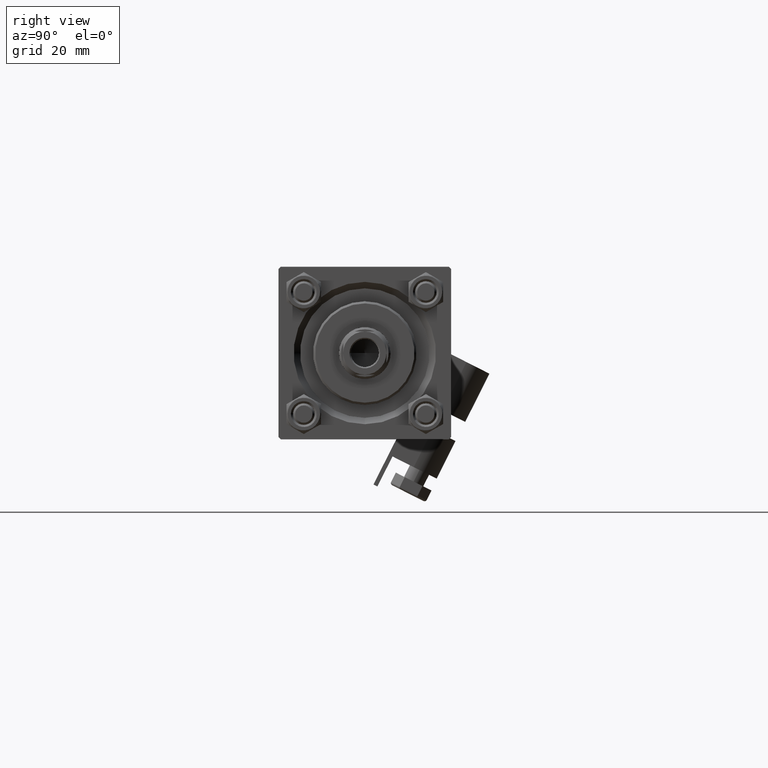
[diagram: clean part render]
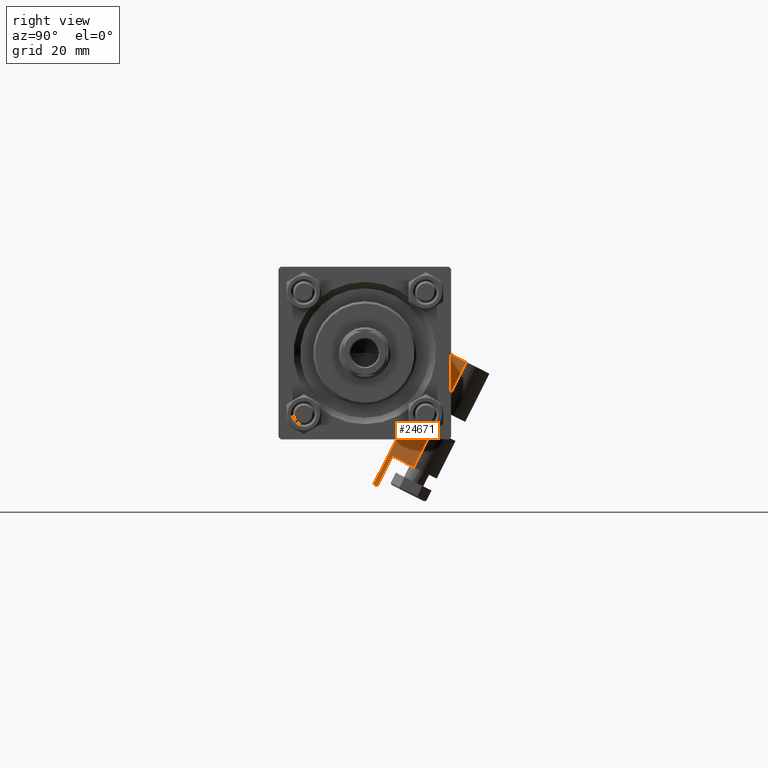
[diagram: same view with one face highlighted and labeled with its STEP entity id]
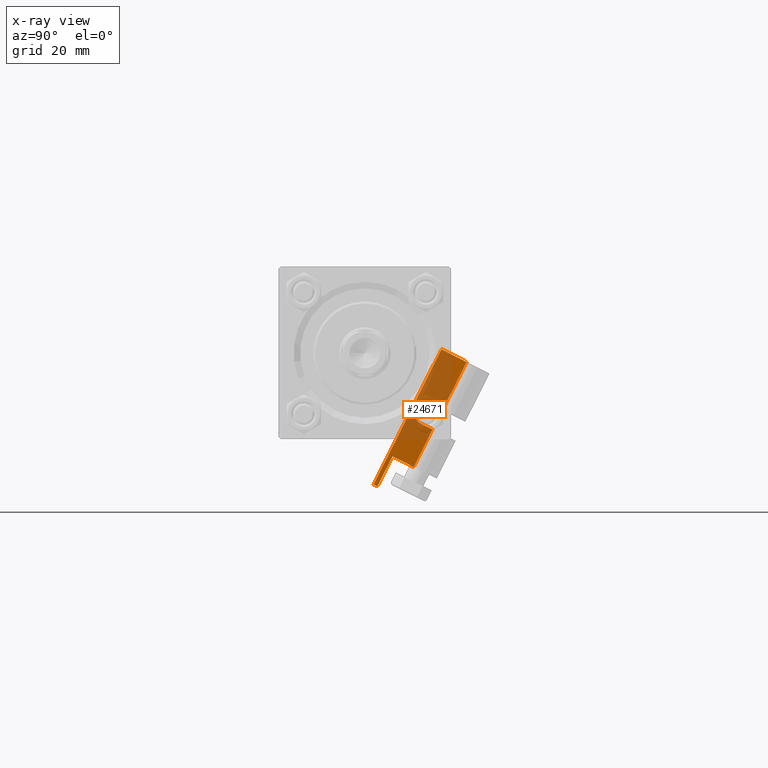
[diagram: x-ray of the same camera — body ghosted, the highlighted face saturated]
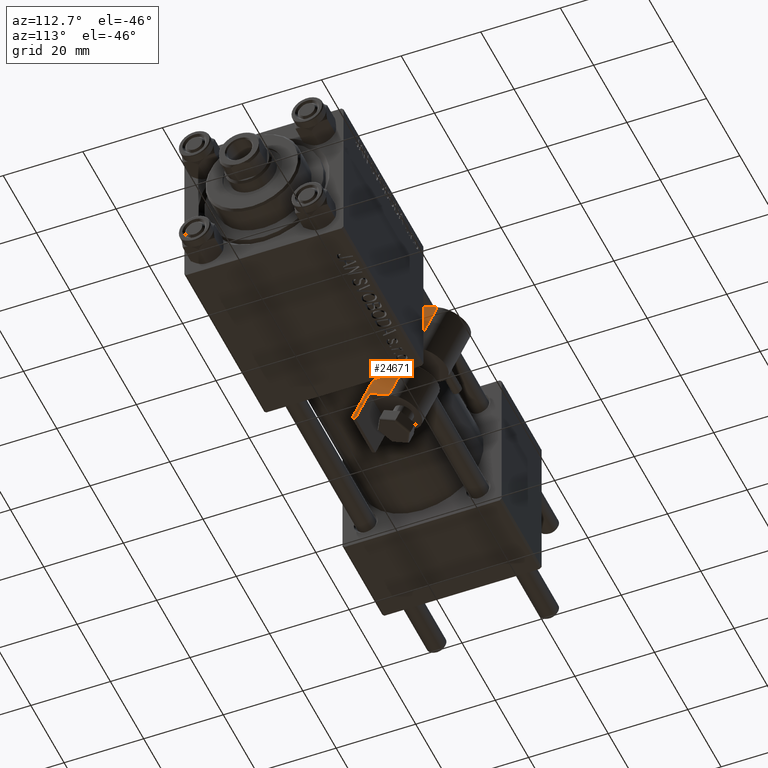
[diagram: same view with one face highlighted and labeled with its STEP entity id]
A machine part, right view. The second image highlights one B-rep face of the part: STEP entity #24671.
The next image is the same camera in x-ray: the body ghosted, the highlighted face saturated — about 62% of this face is hidden behind the body in this view.
A second angle (auxiliary view) of the same face is appended — the face is thin or edge-on in the first view.
In plain terms, the highlighted planar face has unit normal (-1, -0, 0).
Its self-contained STEP definition (entity closure, byte-faithful):
#275 = VERTEX_POINT ( 'NONE', #33742 ) ;
#366 = AXIS2_PLACEMENT_3D ( 'NONE', #43048, #23765, #38931 ) ;
#1019 = CARTESIAN_POINT ( 'NONE',  ( 14.74000000000000021, 6.500000000000000000, -5.999999999999980460 ) ) ;
#1057 = ORIENTED_EDGE ( 'NONE', *, *, #25386, .T. ) ;
#1111 = VERTEX_POINT ( 'NONE', #19127 ) ;
#1224 = VERTEX_POINT ( 'NONE', #8312 ) ;
#1889 = CARTESIAN_POINT ( 'NONE',  ( -7.780000000000000249, 1.000000000000000000, -6.000000000000000000 ) ) ;
#1910 = EDGE_CURVE ( 'NONE', #10592, #29294, #14274, .T. ) ;
#2105 = CARTESIAN_POINT ( 'NONE',  ( 9.740000000000000213, 6.500000000000000000, -5.999999999999997335 ) ) ;
#3191 = DIRECTION ( 'NONE',  ( -0.000000000000000000, 1.000000000000000000, 1.334402673828313339E-16 ) ) ;
#3279 = VERTEX_POINT ( 'NONE', #45767 ) ;
#3315 = ORIENTED_EDGE ( 'NONE', *, *, #31058, .F. ) ;
#5438 = DIRECTION ( 'NONE',  ( -1.000000000000000000, -0.000000000000000000, -0.000000000000000000 ) ) ;
#5969 = FACE_OUTER_BOUND ( 'NONE', #43829, .T. ) ;
#6510 = DIRECTION ( 'NONE',  ( -1.000000000000000000, -0.000000000000000000, -0.000000000000000000 ) ) ;
#6738 = CARTESIAN_POINT ( 'NONE',  ( 27.24000000000000199, 6.500000000000000000, -5.999999999999980460 ) ) ;
#6818 = DIRECTION ( 'NONE',  ( -0.000000000000000000, 1.000000000000000000, 4.003208021484940511E-16 ) ) ;
#7252 = LINE ( 'NONE', #6738, #8481 ) ;
#8312 = CARTESIAN_POINT ( 'NONE',  ( 0.000000000000000000, 6.500000000000000000, -5.999999999999997335 ) ) ;
#8481 = VECTOR ( 'NONE', #37550, 1000.000000000000000 ) ;
#9904 = CARTESIAN_POINT ( 'NONE',  ( 9.740000000000000213, 6.500000000000000000, -5.999999999999997335 ) ) ;
#10315 = DIRECTION ( 'NONE',  ( 1.000000000000000000, -0.000000000000000000, -0.000000000000000000 ) ) ;
#10592 = VERTEX_POINT ( 'NONE', #29573 ) ;
#10931 = EDGE_CURVE ( 'NONE', #10592, #43002, #45827, .T. ) ;
#12151 = CARTESIAN_POINT ( 'NONE',  ( 27.24000000000000199, 0.000000000000000000, -6.000000000000000000 ) ) ;
#12825 = ORIENTED_EDGE ( 'NONE', *, *, #38546, .F. ) ;
#13725 = CARTESIAN_POINT ( 'NONE',  ( 9.740000000000000213, 0.000000000000000000, -6.000000000000000000 ) ) ;
#13790 = DIRECTION ( 'NONE',  ( -0.000000000000000000, 1.000000000000000000, 4.003208021484940511E-16 ) ) ;
#14193 = DIRECTION ( 'NONE',  ( 0.000000000000000000, -1.000000000000000000, -4.003208021484940511E-16 ) ) ;
#14274 = LINE ( 'NONE', #9904, #35674 ) ;
#15159 = ORIENTED_EDGE ( 'NONE', *, *, #1910, .F. ) ;
#15198 = LINE ( 'NONE', #46032, #27407 ) ;
#15638 = CARTESIAN_POINT ( 'NONE',  ( 12.24000000000000021, 3.500000000000000000, -6.000000000000000000 ) ) ;
#16834 = LINE ( 'NONE', #1889, #20027 ) ;
#17447 = EDGE_CURVE ( 'NONE', #1111, #1224, #18140, .T. ) ;
#18140 = LINE ( 'NONE', #30195, #38542 ) ;
#18437 = VERTEX_POINT ( 'NONE', #30715 ) ;
#19127 = CARTESIAN_POINT ( 'NONE',  ( 0.000000000000000000, 1.000000000000000000, -6.000000000000000000 ) ) ;
#20027 = VECTOR ( 'NONE', #44310, 1000.000000000000000 ) ;
#20058 = CIRCLE ( 'NONE', #366, 2.500000000000000000 ) ;
#20530 = CARTESIAN_POINT ( 'NONE',  ( -7.780000000000000249, 0.000000000000000000, -6.000000000000000000 ) ) ;
#21202 = AXIS2_PLACEMENT_3D ( 'NONE', #15638, #31777, #31526 ) ;
#21367 = LINE ( 'NONE', #28560, #38107 ) ;
#22714 = LINE ( 'NONE', #38381, #44475 ) ;
#23439 = ORIENTED_EDGE ( 'NONE', *, *, #25562, .F. ) ;
#23765 = DIRECTION ( 'NONE',  ( 0.000000000000000000, -4.003208021484940511E-16, 1.000000000000000000 ) ) ;
#24671 = ADVANCED_FACE ( 'NONE', ( #5969 ), #37294, .F. ) ;
#25386 = EDGE_CURVE ( 'NONE', #3279, #1111, #15198, .T. ) ;
#25562 = EDGE_CURVE ( 'NONE', #3279, #43505, #16834, .T. ) ;
#27407 = VECTOR ( 'NONE', #10315, 1000.000000000000000 ) ;
#28560 = CARTESIAN_POINT ( 'NONE',  ( 9.740000000000000213, 6.500000000000000000, -5.999999999999997335 ) ) ;
#29294 = VERTEX_POINT ( 'NONE', #36696 ) ;
#29573 = CARTESIAN_POINT ( 'NONE',  ( 9.740000000000000213, 3.500000000000000888, -5.999999999999998224 ) ) ;
#29724 = AXIS2_PLACEMENT_3D ( 'NONE', #2105, #49387, #14193 ) ;
#30195 = CARTESIAN_POINT ( 'NONE',  ( 0.000000000000000000, 6.500000000000000000, -5.999999999999997335 ) ) ;
#30715 = CARTESIAN_POINT ( 'NONE',  ( 14.74000000000000021, 3.500000000000000888, -5.999999999999999112 ) ) ;
#30760 = VERTEX_POINT ( 'NONE', #12151 ) ;
#31058 = EDGE_CURVE ( 'NONE', #30760, #275, #22714, .T. ) ;
#31526 = DIRECTION ( 'NONE',  ( 0.000000000000000000, -1.000000000000000000, -3.469446951953614189E-16 ) ) ;
#31547 = EDGE_CURVE ( 'NONE', #18437, #36605, #48822, .T. ) ;
#31777 = DIRECTION ( 'NONE',  ( 0.000000000000000000, -4.003208021484940511E-16, 1.000000000000000000 ) ) ;
#33742 = CARTESIAN_POINT ( 'NONE',  ( 27.24000000000000199, 6.500000000000000000, -5.999999999999980460 ) ) ;
#35611 = CARTESIAN_POINT ( 'NONE',  ( 12.23999999999999844, 1.000000000000000000, -6.000000000000000000 ) ) ;
#35674 = VECTOR ( 'NONE', #6818, 1000.000000000000000 ) ;
#36605 = VERTEX_POINT ( 'NONE', #1019 ) ;
#36696 = CARTESIAN_POINT ( 'NONE',  ( 9.740000000000000213, 6.500000000000000000, -5.999999999999997335 ) ) ;
#37294 = PLANE ( 'NONE',  #29724 ) ;
#37550 = DIRECTION ( 'NONE',  ( -1.000000000000000000, -0.000000000000000000, -0.000000000000000000 ) ) ;
#38107 = VECTOR ( 'NONE', #5438, 1000.000000000000000 ) ;
#38381 = CARTESIAN_POINT ( 'NONE',  ( 27.24000000000000199, 6.500000000000000000, -5.999999999999999112 ) ) ;
#38542 = VECTOR ( 'NONE', #13790, 1000.000000000000000 ) ;
#38546 = EDGE_CURVE ( 'NONE', #275, #36605, #7252, .T. ) ;
#38931 = DIRECTION ( 'NONE',  ( 0.000000000000000000, -1.000000000000000000, -3.469446951953614189E-16 ) ) ;
#39445 = ORIENTED_EDGE ( 'NONE', *, *, #31547, .T. ) ;
#40005 = VECTOR ( 'NONE', #6510, 1000.000000000000000 ) ;
#40334 = DIRECTION ( 'NONE',  ( -0.000000000000000000, 1.000000000000000000, 1.334402673828313339E-16 ) ) ;
#40426 = LINE ( 'NONE', #13725, #40005 ) ;
#40933 = EDGE_CURVE ( 'NONE', #29294, #1224, #21367, .T. ) ;
#41723 = EDGE_CURVE ( 'NONE', #43002, #18437, #20058, .T. ) ;
#41864 = ORIENTED_EDGE ( 'NONE', *, *, #49631, .T. ) ;
#42017 = VECTOR ( 'NONE', #40334, 1000.000000000000000 ) ;
#43002 = VERTEX_POINT ( 'NONE', #35611 ) ;
#43048 = CARTESIAN_POINT ( 'NONE',  ( 12.23999999999999844, 3.500000000000000000, -5.999999999999998224 ) ) ;
#43505 = VERTEX_POINT ( 'NONE', #20530 ) ;
#43829 = EDGE_LOOP ( 'NONE', ( #41864, #23439, #1057, #47425, #44848, #15159, #46560, #44159, #39445, #12825, #3315 ) ) ;
#44159 = ORIENTED_EDGE ( 'NONE', *, *, #41723, .T. ) ;
#44310 = DIRECTION ( 'NONE',  ( 0.000000000000000000, -1.000000000000000000, 0.000000000000000000 ) ) ;
#44475 = VECTOR ( 'NONE', #3191, 1000.000000000000000 ) ;
#44848 = ORIENTED_EDGE ( 'NONE', *, *, #40933, .F. ) ;
#44976 = CARTESIAN_POINT ( 'NONE',  ( 14.74000000000000021, 6.500000000000000000, -5.999999999999999112 ) ) ;
#45767 = CARTESIAN_POINT ( 'NONE',  ( -7.780000000000000249, 1.000000000000000000, -6.000000000000000000 ) ) ;
#45827 = CIRCLE ( 'NONE', #21202, 2.500000000000000000 ) ;
#46032 = CARTESIAN_POINT ( 'NONE',  ( -7.780000000000000249, 1.000000000000000000, -6.000000000000000000 ) ) ;
#46560 = ORIENTED_EDGE ( 'NONE', *, *, #10931, .T. ) ;
#47425 = ORIENTED_EDGE ( 'NONE', *, *, #17447, .T. ) ;
#48822 = LINE ( 'NONE', #44976, #42017 ) ;
#49387 = DIRECTION ( 'NONE',  ( 0.000000000000000000, -4.003208021484940511E-16, 1.000000000000000000 ) ) ;
#49631 = EDGE_CURVE ( 'NONE', #30760, #43505, #40426, .T. ) ;